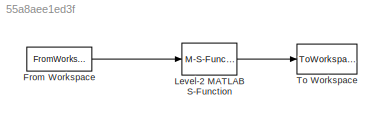
MODEL slx_55a8aee1ed3f
KIND model
CONFIG AbsTol = auto
CONFIG EnableMultiTasking = off
CONFIG FixedStep = auto
CONFIG MaxStep = auto
CONFIG MinStep = auto
CONFIG RelTol = 1e-3
CONFIG SampleTimeConstraint = Unconstrained
CONFIG Solver = VariableStepAuto
CONFIG SolverName = VariableStepAuto
CONFIG StartTime = 0.0
CONFIG StopTime = 10.0
BLOCK [FromWorkspace] From Workspace
  SampleTime = Ts
  VariableName = u
  ZeroCross = on
BLOCK [M-S-Function] Level-2 MATLAB S-Function
  FunctionName = plant_level2Sfunction
  Ports = [1, 1]
BLOCK [ToWorkspace] To Workspace
  FixptAsFi = on
  MaxDataPoints = inf
  Ports = [1]
  SampleTime = Ts
  Save2DSignal = 3-D array (concatenate along third dimension)
  SaveFormat = Structure With Time
  VariableName = y
LINE From Workspace:1 -> Level-2 MATLAB S-Function:1
LINE Level-2 MATLAB S-Function:1 -> To Workspace:1
